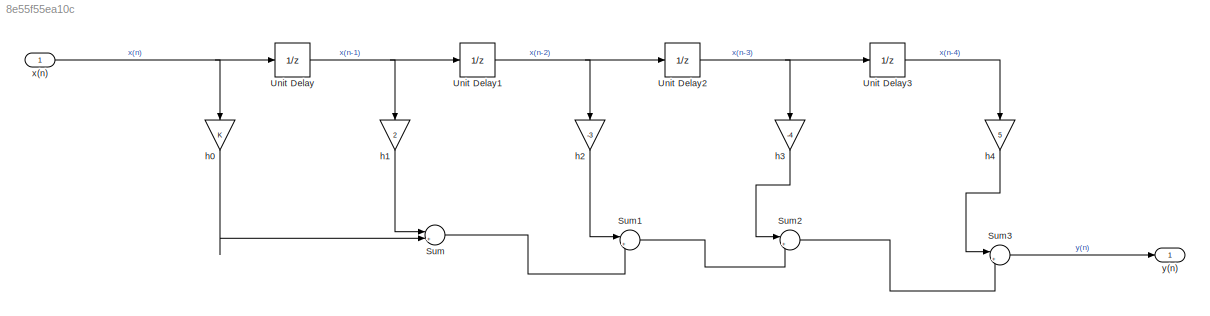
MODEL slx_8e55f55ea10c
KIND model
CONFIG AbsTol = auto
CONFIG EnableMultiTasking = off
CONFIG FixedStep = 0.2
CONFIG MaxStep = auto
CONFIG MinStep = auto
CONFIG RelTol = 1e-3
CONFIG SampleTimeConstraint = Unconstrained
CONFIG SolverName = FixedStepAuto
CONFIG StartTime = 0.0
CONFIG StopTime = 10.0
BLOCK [Sum] Sum
  Inputs = |++
  Ports = [2, 1]
BLOCK [Sum] Sum1
  Inputs = |++
  Ports = [2, 1]
BLOCK [Sum] Sum2
  Inputs = |++
  Ports = [2, 1]
BLOCK [Sum] Sum3
  Inputs = |++
  Ports = [2, 1]
BLOCK [UnitDelay] Unit Delay
  HasFrameUpgradeWarning = on
  SampleTime = -1
BLOCK [UnitDelay] Unit Delay1
  HasFrameUpgradeWarning = on
  SampleTime = -1
BLOCK [UnitDelay] Unit Delay2
  HasFrameUpgradeWarning = on
  SampleTime = -1
BLOCK [UnitDelay] Unit Delay3
  HasFrameUpgradeWarning = on
  SampleTime = -1
BLOCK [Gain] h0
  NameLocation = left
BLOCK [Gain] h1
  Gain = 2
  NameLocation = left
BLOCK [Gain] h2
  Gain = -3
  NameLocation = left
BLOCK [Gain] h3
  Gain = -4
  NameLocation = left
BLOCK [Gain] h4
  Gain = 5
  NameLocation = left
BLOCK [Inport] x(n)
  OutDataTypeStr = double
  PortDimensions = 1
  SampleTime = [0.20000000000000001,0]
  SamplingMode = Sample based
  SignalType = real
BLOCK [Outport] y(n)
  OutDataTypeStr = double
  PortDimensions = 1
  SampleTime = [0.20000000000000001,0]
  SamplingMode = Sample based
  SignalType = real
LINE Sum1:1 -> Sum2:2
LINE Sum2:1 -> Sum3:2
LINE Sum3:1 -> y(n):1
LINE Sum:1 -> Sum1:2
NET Unit Delay1:1 -> Unit Delay2:1, h2:1
NET Unit Delay2:1 -> Unit Delay3:1, h3:1
LINE Unit Delay3:1 -> h4:1
NET Unit Delay:1 -> Unit Delay1:1, h1:1
LINE h0:1 -> Sum:2
LINE h1:1 -> Sum:1
LINE h2:1 -> Sum1:1
LINE h3:1 -> Sum2:1
LINE h4:1 -> Sum3:1
NET x(n):1 -> Unit Delay:1, h0:1
note: NET lines group one-source signal fan-out (src -> all destinations, sorted); 1:1 wires keep LINE
